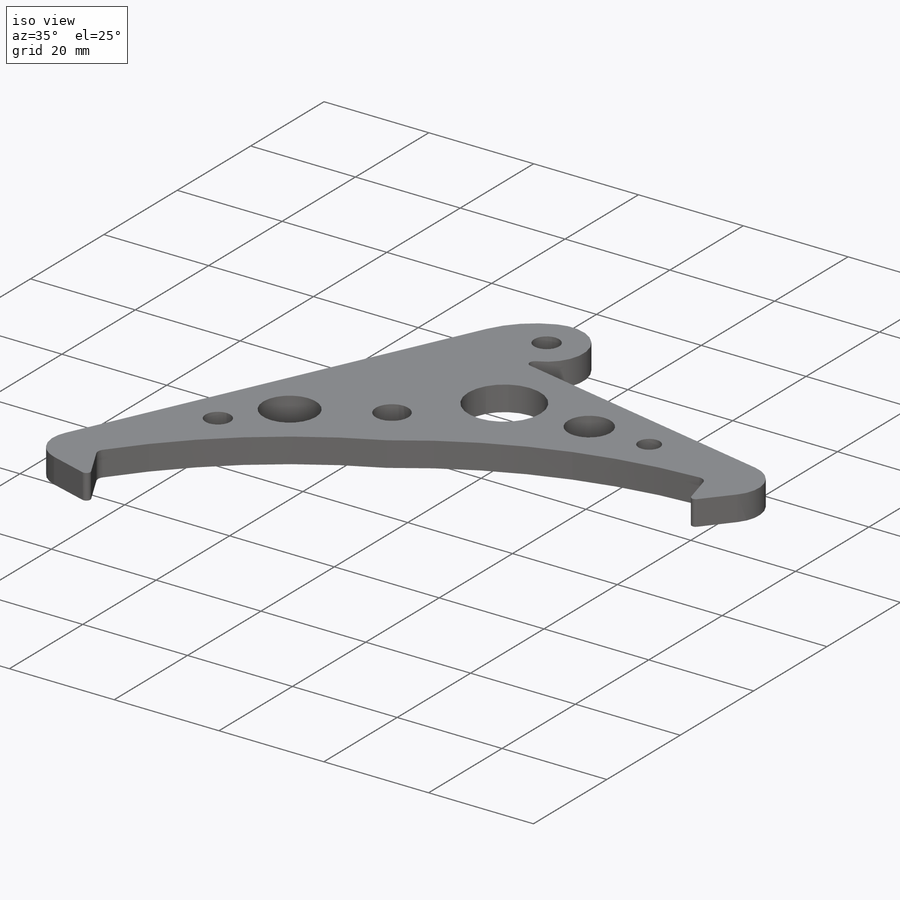
[diagram: iso view]
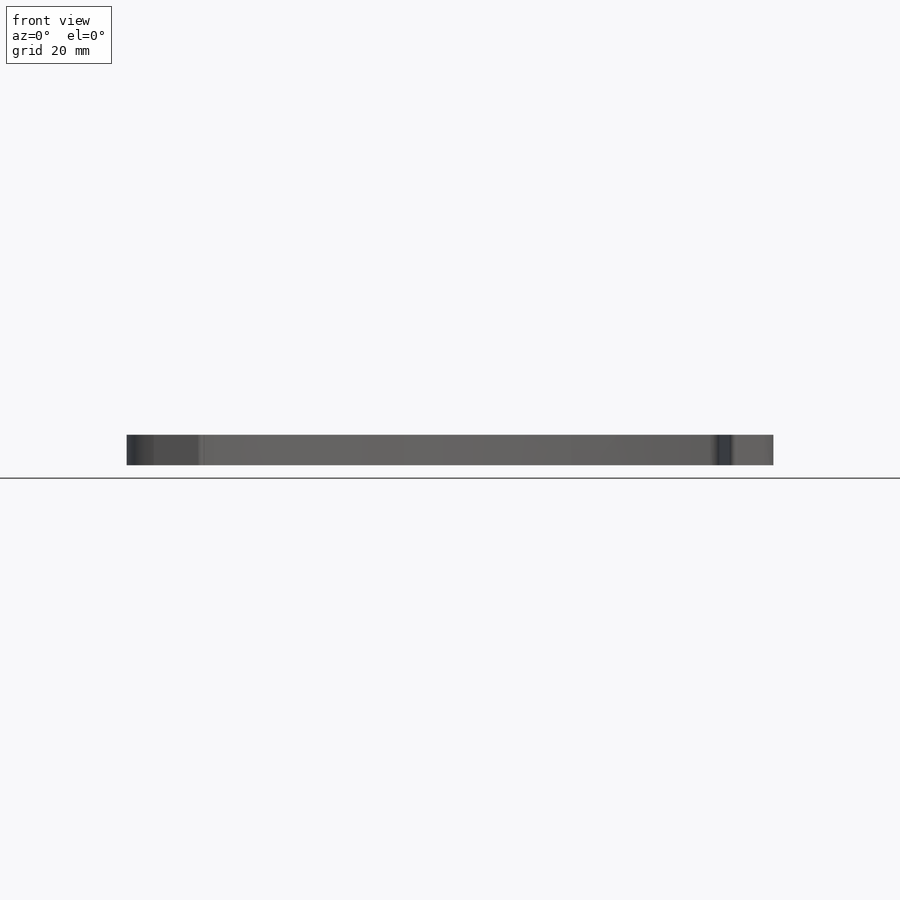
[diagram: front view]
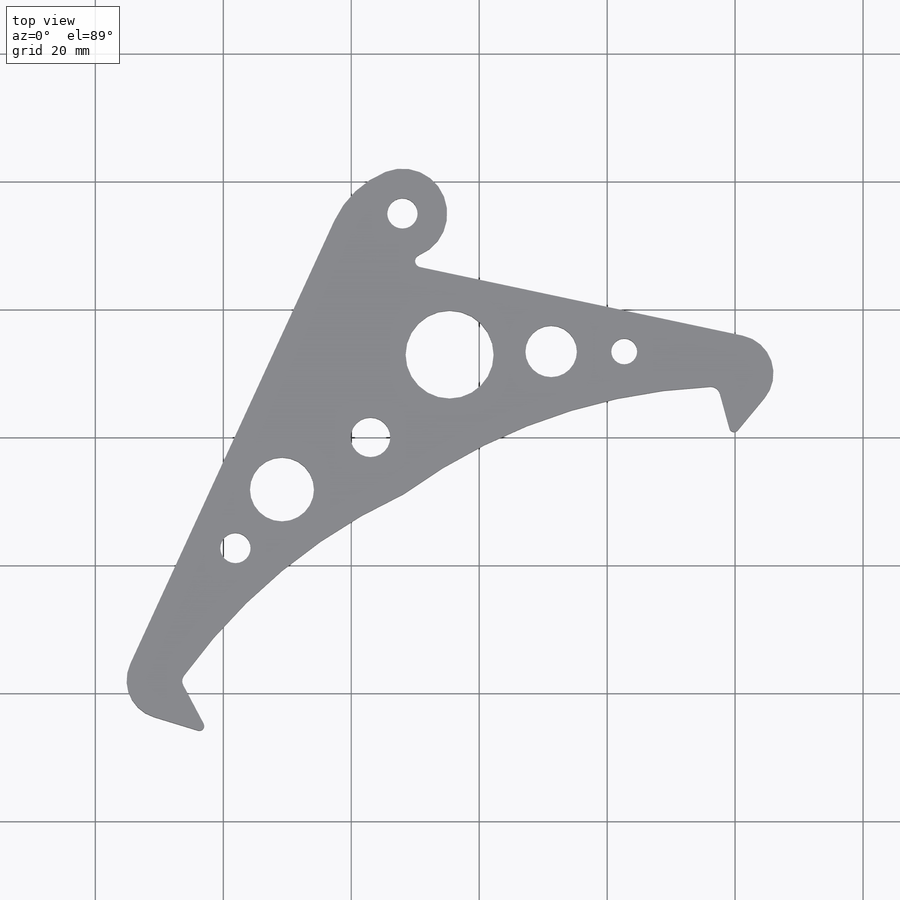
[diagram: top view]
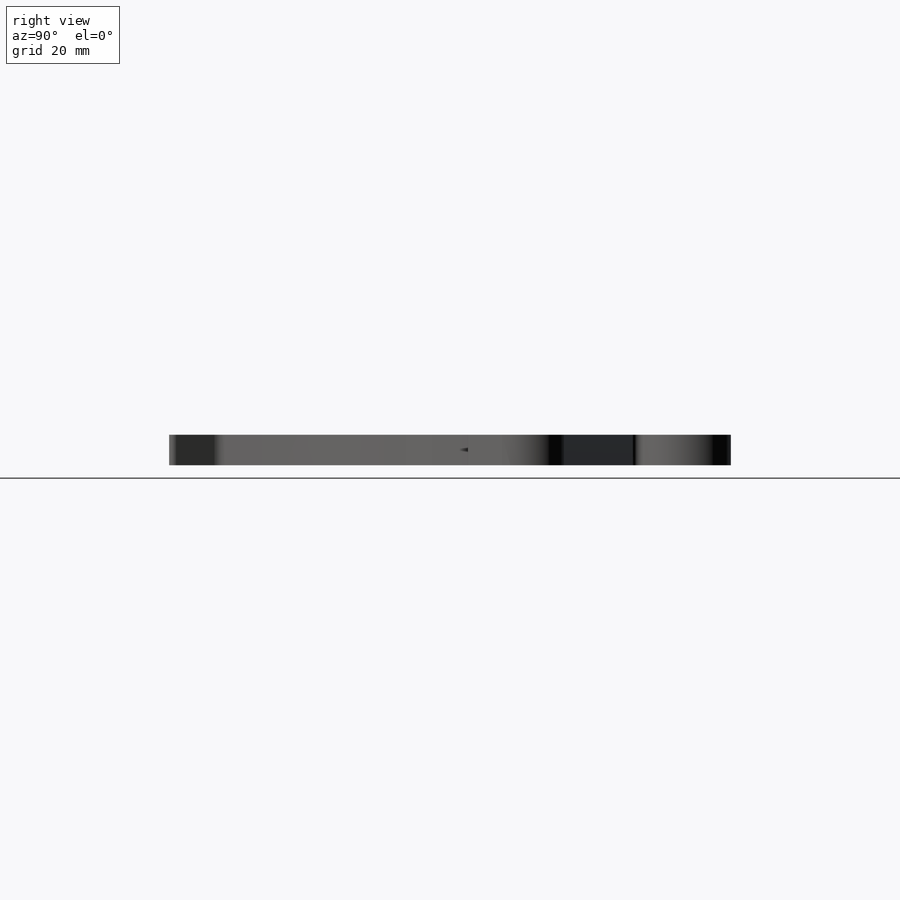
[diagram: right view]
SOLIDWORKS PART (.sldprt)
format: sldprt  version: not decoded by parser v0  size: 279,040 bytes
history: native  units: mm
features: sketch x3, fillet x2, cut_extrude x2, material x1, extrude x1 (+16 scaffold rows collapsed)
feature tree (25):
  scaffold x16  (default folders/planes/origin — collapsed)
  material  "Material <not specified>"
  sketch  "Sketch1"  dims[c1.D1=160.0mm c1.D4=6.2mm c1.D9=88.0mm c1.D15=4.75mm c1.D17=6.0mm c1.D20=7.0mm c1.D22=15.0mm c1.D23=6.0mm c1.D2=80.0mm c1.D3=57.0mm c1.D5=~9.725096mm c2.D5=~5.901639deg c2.D6=~1.473567mm c3.D6=15.0deg c3.D7=~10.930358mm c4.D7=40.0deg c4.D10=~32.178783mm c5.D10=15.0deg c5.D11=~98.21026mm c6.D11=45.0deg c6.D10=~92.220829mm c7.D10=10.0deg c7.D11=~36.740403mm c8.D11=15.0deg c8.D12=~79.615088mm c9.D12=40.0deg c9.D13=80.0mm c9.D14=80.0mm c10.D14=32.5deg c10.D16=90.0mm c10.D18=35.0mm c10.D19=5.0mm c10.D21=~139.754253mm c11.D21=12.0deg c11.D23=90.0mm c11.D24=0.5mm c11.D8=61.0]
  extrude  "Boss-Extrude1"  Depth=4.7625mm
  fillet  "Fillet1"  Radius=0.75mm
  fillet  "Fillet2"  Radius=1.5mm
  sketch  "Sketch2"  dims[c1.D1=~53.201897mm c2.D1=40.0deg c3.D1=~6.815864mm c4.D1=10.0deg]
  cut_extrude  "Cut-Extrude1"  [1 undecoded]
  sketch  "Sketch3"
  cut_extrude  "Cut-Extrude2"  [1 undecoded]
decode coverage: 5 of 8 modeling features carry decoded parameters
note: ~ marks probable driven/reference dimensions
note: 2 parameter values undecoded
note: suppression state not decoded; provenance and decode notes live in map.json
